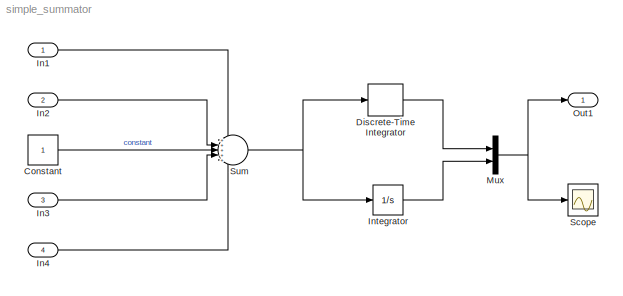
MODEL simple_summator
KIND model
BLOCK [Constant] Constant
  SID = 13
BLOCK [DiscreteIntegrator] Discrete-Time Integrator
  ICPrevOutput = DiscIntNeverNeededParam
  ICPrevScaledInput = DiscIntNeverNeededParam
  Ports = [1, 1]
  SID = 12
  SampleTime = 0.1
BLOCK [Inport] In1
  IconDisplay = Port number
  SID = 1
BLOCK [Inport] In2
  IconDisplay = Port number
  Port = 2
  SID = 2
BLOCK [Inport] In3
  IconDisplay = Port number
  Port = 3
  SID = 4
BLOCK [Inport] In4
  IconDisplay = Port number
  Port = 4
  SID = 6
BLOCK [Integrator] Integrator
  Ports = [1, 1]
  SID = 7
BLOCK [Mux] Mux
  DisplayOption = bar
  Inputs = 2
  Ports = [2, 1]
  SID = 9
BLOCK [Outport] Out1
  IconDisplay = Port number
  SID = 10
BLOCK [Scope] Scope
  DataFormat = StructureWithTime
  Floating = off
  LimitDataPoints = off
  NumInputPorts = 1
  Ports = [1]
  SID = 11
  SampleTime = 0
  ShowLegends = off
  ZoomMode = yonly
BLOCK [Sum] Sum
  IconShape = round
  InputSameDT = off
  Inputs = +++++
  OutDataTypeStr = Inherit: Inherit via internal rule
  Ports = [5, 1]
  SID = 5
  SaturateOnIntegerOverflow = off
LINE Constant:1 -> Sum:3
LINE Discrete-Time Integrator:1 -> Mux:1
LINE In1:1 -> Sum:1
LINE In2:1 -> Sum:2
LINE In3:1 -> Sum:4
LINE In4:1 -> Sum:5
LINE Integrator:1 -> Mux:2
NET Mux:1 -> Out1:1, Scope:1
NET Sum:1 -> Discrete-Time Integrator:1, Integrator:1
note: NET lines group one-source signal fan-out (src -> all destinations, sorted); 1:1 wires keep LINE
